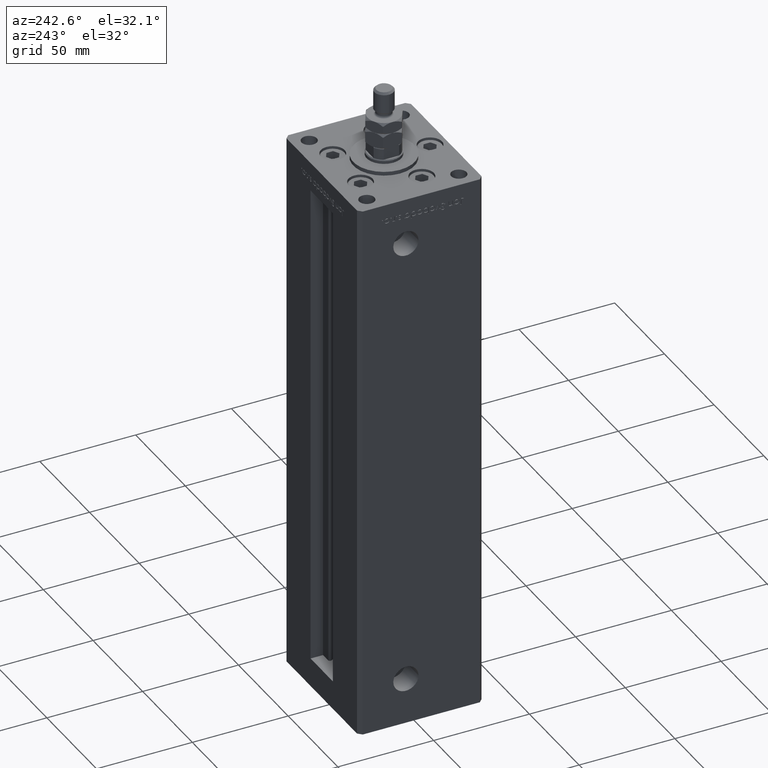
[diagram: clean part render]
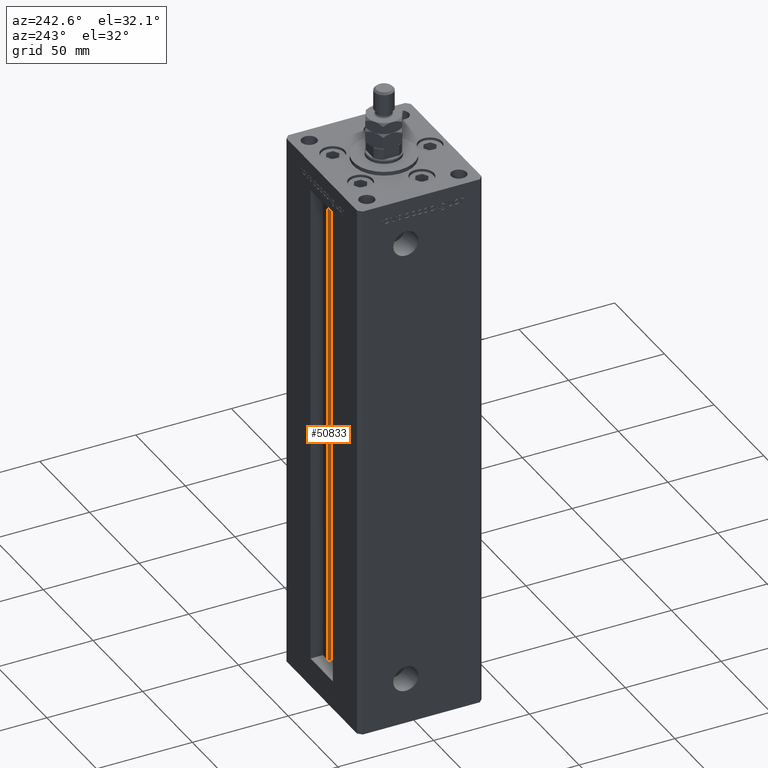
[diagram: same view with one face highlighted and labeled with its STEP entity id]
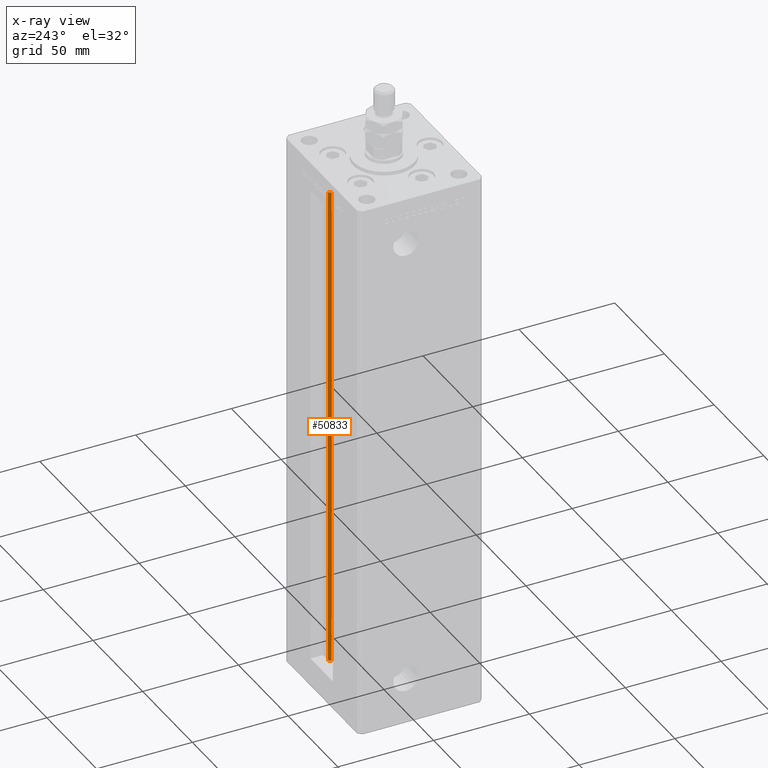
[diagram: x-ray of the same camera — body ghosted, the highlighted face saturated]
A machine part, auxiliary view. The second image highlights one B-rep face of the part: STEP entity #50833.
The next image is the same camera in x-ray: the body ghosted, the highlighted face saturated — about 0% of this face is hidden behind the body in this view.
In plain terms, the highlighted cylindrical surface (edge-blend (fillet) strip) has radius 0.9333 mm, axis along (0, 0, 1).
Its self-contained STEP definition (entity closure, byte-faithful):
#799 = LINE ( 'NONE', #38281, #48275 ) ;
#848 = VERTEX_POINT ( 'NONE', #29689 ) ;
#999 = DIRECTION ( 'NONE',  ( 0.000000000000000000, 0.000000000000000000, -1.000000000000000000 ) ) ;
#1115 = DIRECTION ( 'NONE',  ( 1.000000000000000000, 0.000000000000000000, 0.000000000000000000 ) ) ;
#2028 = ORIENTED_EDGE ( 'NONE', *, *, #13611, .F. ) ;
#4388 = EDGE_LOOP ( 'NONE', ( #2028, #25609, #36674, #30365 ) ) ;
#5162 = LINE ( 'NONE', #45898, #34007 ) ;
#11582 = VERTEX_POINT ( 'NONE', #53526 ) ;
#11651 = AXIS2_PLACEMENT_3D ( 'NONE', #46756, #51108, #1115 ) ;
#13216 = CARTESIAN_POINT ( 'NONE',  ( 6.183333333334001480, 25.06666666666599141, 0.000000000000000000 ) ) ;
#13611 = EDGE_CURVE ( 'NONE', #35153, #848, #799, .T. ) ;
#13877 = EDGE_CURVE ( 'NONE', #24401, #848, #20646, .T. ) ;
#17567 = DIRECTION ( 'NONE',  ( 1.000000000000000000, 0.000000000000000000, 0.000000000000000000 ) ) ;
#20646 = CIRCLE ( 'NONE', #44062, 0.9333333333340008142 ) ;
#24318 = CARTESIAN_POINT ( 'NONE',  ( 6.183333333334001480, 25.99999999999999289, 0.000000000000000000 ) ) ;
#24401 = VERTEX_POINT ( 'NONE', #45996 ) ;
#25421 = CYLINDRICAL_SURFACE ( 'NONE', #31210, 0.9333333333340008142 ) ;
#25540 = CIRCLE ( 'NONE', #11651, 0.9333333333340008142 ) ;
#25609 = ORIENTED_EDGE ( 'NONE', *, *, #29960, .F. ) ;
#29318 = DIRECTION ( 'NONE',  ( -0.000000000000000000, -0.000000000000000000, 1.000000000000000000 ) ) ;
#29689 = CARTESIAN_POINT ( 'NONE',  ( 6.183333333334001480, 25.99999999999999289, 256.0000000000000000 ) ) ;
#29960 = EDGE_CURVE ( 'NONE', #11582, #35153, #25540, .T. ) ;
#30365 = ORIENTED_EDGE ( 'NONE', *, *, #13877, .T. ) ;
#31210 = AXIS2_PLACEMENT_3D ( 'NONE', #13216, #52035, #43063 ) ;
#33563 = FACE_OUTER_BOUND ( 'NONE', #4388, .T. ) ;
#34007 = VECTOR ( 'NONE', #29318, 1000.000000000000000 ) ;
#34459 = DIRECTION ( 'NONE',  ( -0.000000000000000000, -0.000000000000000000, 1.000000000000000000 ) ) ;
#35153 = VERTEX_POINT ( 'NONE', #24318 ) ;
#36674 = ORIENTED_EDGE ( 'NONE', *, *, #45403, .T. ) ;
#38217 = CARTESIAN_POINT ( 'NONE',  ( 6.183333333334001480, 25.06666666666599141, 256.0000000000000000 ) ) ;
#38281 = CARTESIAN_POINT ( 'NONE',  ( 6.183333333334001480, 25.99999999999999289, 0.000000000000000000 ) ) ;
#43063 = DIRECTION ( 'NONE',  ( 1.000000000000000000, 0.000000000000000000, 0.000000000000000000 ) ) ;
#44062 = AXIS2_PLACEMENT_3D ( 'NONE', #38217, #999, #17567 ) ;
#45403 = EDGE_CURVE ( 'NONE', #11582, #24401, #5162, .T. ) ;
#45898 = CARTESIAN_POINT ( 'NONE',  ( 5.375042956467947164, 24.59999999999899245, 0.000000000000000000 ) ) ;
#45996 = CARTESIAN_POINT ( 'NONE',  ( 5.375042956467948052, 24.59999999999899245, 256.0000000000000000 ) ) ;
#46756 = CARTESIAN_POINT ( 'NONE',  ( 6.183333333334001480, 25.06666666666599141, 0.000000000000000000 ) ) ;
#48275 = VECTOR ( 'NONE', #34459, 1000.000000000000000 ) ;
#50833 = ADVANCED_FACE ( 'NONE', ( #33563 ), #25421, .T. ) ;
#51108 = DIRECTION ( 'NONE',  ( -0.000000000000000000, -0.000000000000000000, -1.000000000000000000 ) ) ;
#52035 = DIRECTION ( 'NONE',  ( -0.000000000000000000, -0.000000000000000000, 1.000000000000000000 ) ) ;
#53526 = CARTESIAN_POINT ( 'NONE',  ( 5.375042956467947164, 24.59999999999899245, 0.000000000000000000 ) ) ;